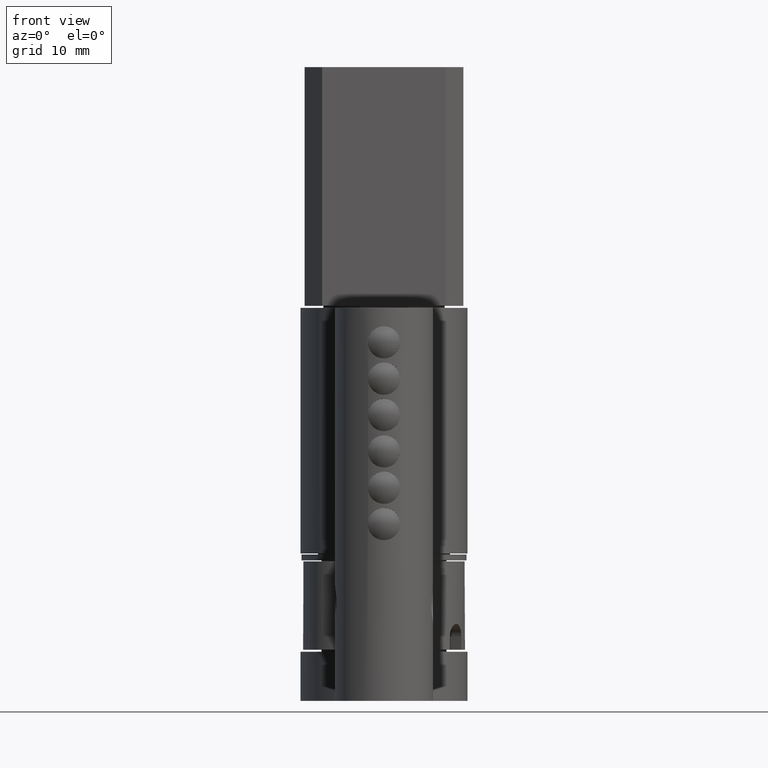
[diagram: clean part render]
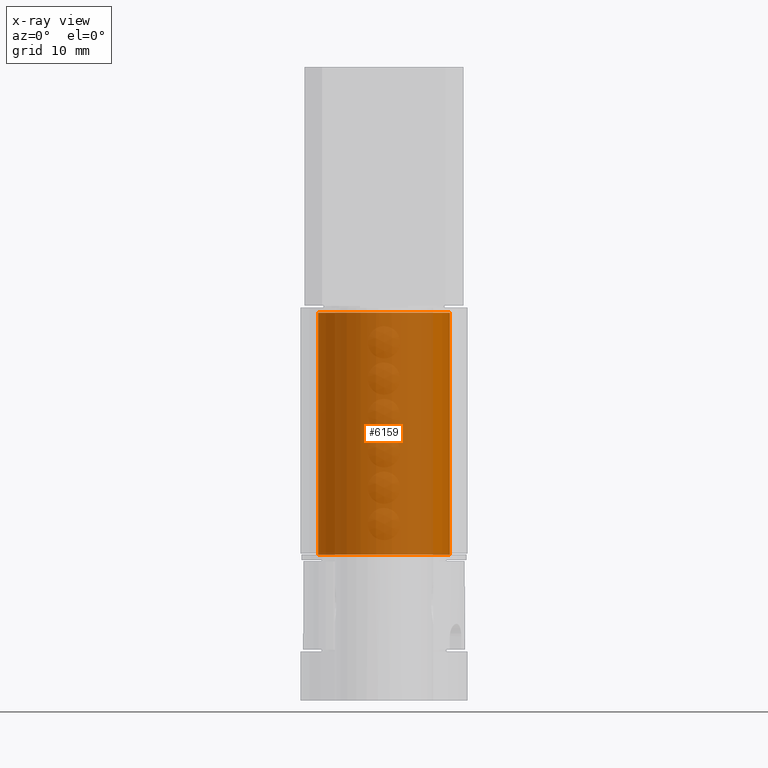
[diagram: x-ray — body ghosted, one internal face saturated and labeled with its STEP entity id]
A machine part, front view, then the same camera in x-ray: the body is ghosted and one INTERNAL B-rep face — a face not visible from any outside direction — is saturated and labeled: STEP entity #6159.
In plain terms, the highlighted cylindrical surface (bore or boss wall) has radius 6.7 mm, axis along (-0, -0, -1).
Its self-contained STEP definition (entity closure, byte-faithful):
#156 = ORIENTED_EDGE ( 'NONE', *, *, #9805, .F. ) ;
#2836 = EDGE_LOOP ( 'NONE', ( #6698 ) ) ;
#3168 = AXIS2_PLACEMENT_3D ( 'NONE', #12347, #9151, #9199 ) ;
#3309 = VERTEX_POINT ( 'NONE', #6673 ) ;
#4185 = CARTESIAN_POINT ( 'NONE',  ( 0.0000000000000000000, -4.974888019733982900E-015, -4.849999999999997000 ) ) ;
#4602 = DIRECTION ( 'NONE',  ( -1.000000000000000000, 0.0000000000000000000, 0.0000000000000000000 ) ) ;
#4605 = CIRCLE ( 'NONE', #10645, 6.700000000000000200 ) ;
#5158 = AXIS2_PLACEMENT_3D ( 'NONE', #6785, #9923, #4602 ) ;
#6159 = ADVANCED_FACE ( 'NONE', ( #11615, #8793 ), #6567, .T. ) ;
#6365 = DIRECTION ( 'NONE',  ( -1.000000000000000000, 0.0000000000000000000, 0.0000000000000000000 ) ) ;
#6367 = EDGE_LOOP ( 'NONE', ( #156 ) ) ;
#6567 = CYLINDRICAL_SURFACE ( 'NONE', #5158, 6.700000000000000200 ) ;
#6673 = CARTESIAN_POINT ( 'NONE',  ( -6.700000000000000200, -4.974888019733982900E-015, -4.849999999999997000 ) ) ;
#6698 = ORIENTED_EDGE ( 'NONE', *, *, #12470, .T. ) ;
#6785 = CARTESIAN_POINT ( 'NONE',  ( 0.0000000000000000000, -4.974888019733982900E-015, -19.75000000000000000 ) ) ;
#8793 = FACE_OUTER_BOUND ( 'NONE', #6367, .T. ) ;
#9151 = DIRECTION ( 'NONE',  ( -0.0000000000000000000, -0.0000000000000000000, -1.000000000000000000 ) ) ;
#9199 = DIRECTION ( 'NONE',  ( -1.000000000000000000, 0.0000000000000000000, 0.0000000000000000000 ) ) ;
#9504 = CIRCLE ( 'NONE', #3168, 6.700000000000000200 ) ;
#9805 = EDGE_CURVE ( 'NONE', #3309, #3309, #4605, .T. ) ;
#9923 = DIRECTION ( 'NONE',  ( -0.0000000000000000000, -0.0000000000000000000, -1.000000000000000000 ) ) ;
#10575 = DIRECTION ( 'NONE',  ( -0.0000000000000000000, -0.0000000000000000000, -1.000000000000000000 ) ) ;
#10645 = AXIS2_PLACEMENT_3D ( 'NONE', #4185, #10575, #6365 ) ;
#10785 = CARTESIAN_POINT ( 'NONE',  ( -6.700000000000000200, -4.974888019733982900E-015, 19.75000000000000700 ) ) ;
#11615 = FACE_OUTER_BOUND ( 'NONE', #2836, .T. ) ;
#11994 = VERTEX_POINT ( 'NONE', #10785 ) ;
#12347 = CARTESIAN_POINT ( 'NONE',  ( 0.0000000000000000000, -4.974888019733982900E-015, 19.75000000000000700 ) ) ;
#12470 = EDGE_CURVE ( 'NONE', #11994, #11994, #9504, .T. ) ;